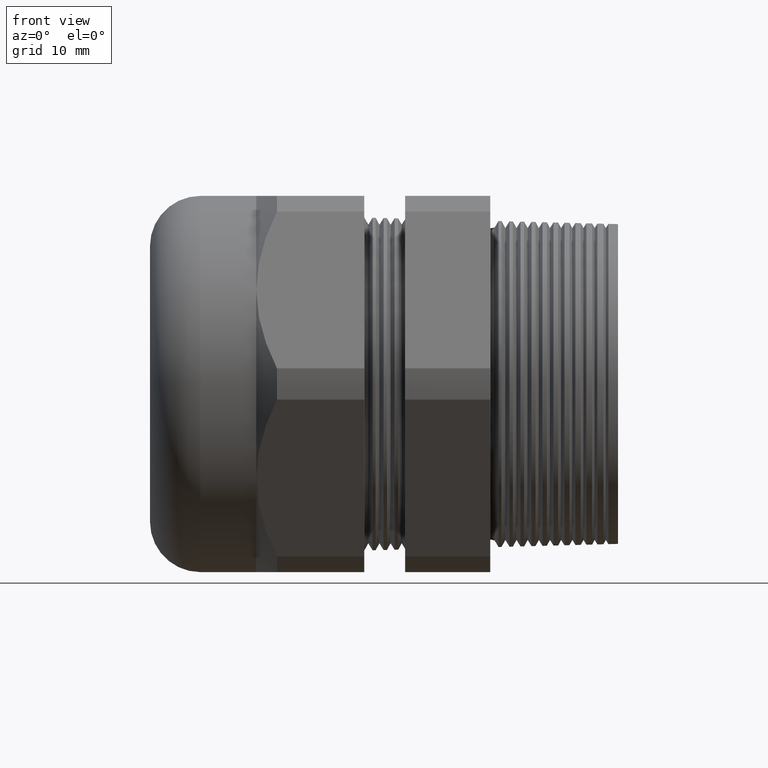
[diagram: clean part render]
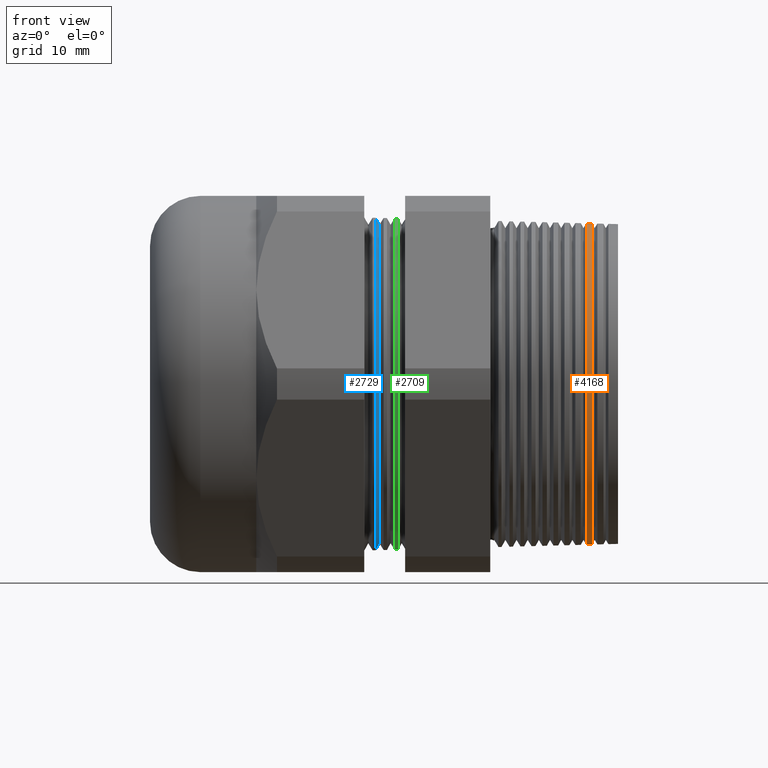
[diagram: same view with three faces highlighted in distinct colors, each labeled with its STEP entity id]
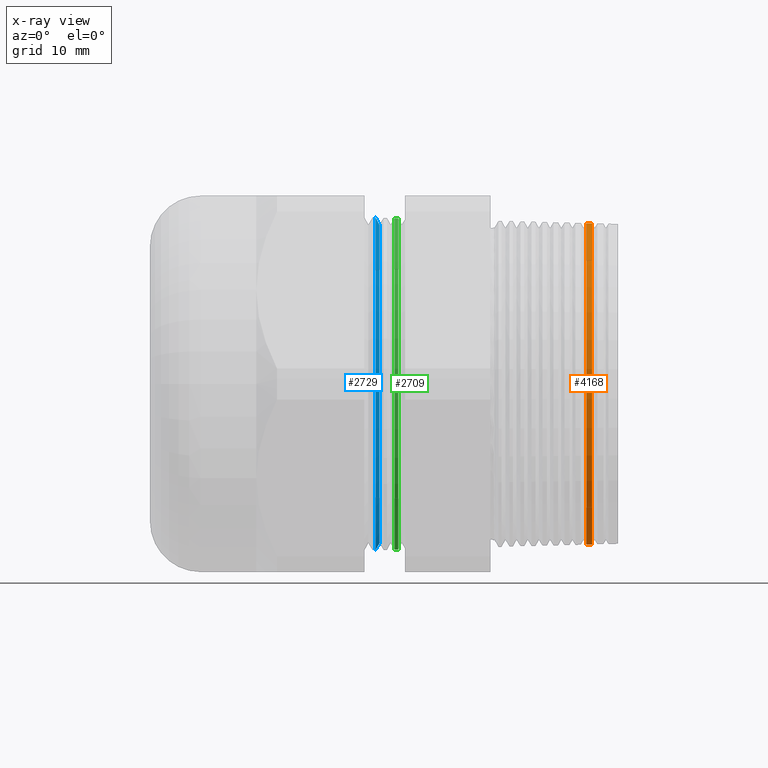
[diagram: x-ray of the same camera — body ghosted, the three highlighted faces saturated]
A machine part, front view with three faces highlighted in distinct colors.
The next image is the same camera in x-ray (body ghosted, the three faces saturated) — at least one of them is partly hidden behind the body in this view.
Their STEP definitions:

[orange] entity #4168 — the highlighted conical surface has half-angle 1.5 deg.
#11 = VERTEX_POINT ( 'NONE', #2896 ) ;
#1183 = DIRECTION ( 'NONE',  ( -0.9996573249755573700, 0.0000000000000000000, 0.02617694830786594700 ) ) ;
#1184 = VECTOR ( 'NONE', #1183, 39.37007874015748100 ) ;
#1185 = CARTESIAN_POINT ( 'NONE',  ( 0.3999999999999999700, 0.0000000000000000000, 0.8880922528443195900 ) ) ;
#1191 = LINE ( 'NONE', #1185, #1184 ) ;
#1217 = DIRECTION ( 'NONE',  ( -0.9996573249755573700, 3.205751595667375400E-018, -0.02617694830786594700 ) ) ;
#1218 = VECTOR ( 'NONE', #1217, 39.37007874015748100 ) ;
#1219 = CARTESIAN_POINT ( 'NONE',  ( 0.3999999999999999700, 1.087599334793357900E-016, -0.8880922528443195900 ) ) ;
#1220 = LINE ( 'NONE', #1219, #1218 ) ;
#1676 = CARTESIAN_POINT ( 'NONE',  ( 0.2560479539771435300, 0.0000000000000000000, 0.8918617698311972500 ) ) ;
#1732 = CARTESIAN_POINT ( 'NONE',  ( 0.2560479539771435300, 1.092724095788043800E-016, -0.8918617698311972500 ) ) ;
#1749 = CARTESIAN_POINT ( 'NONE',  ( 0.2243387064234536300, 1.093232529870418900E-016, -0.8926921057006557100 ) ) ;
#2081 = DIRECTION ( 'NONE',  ( 0.0000000000000000000, 0.0000000000000000000, 1.000000000000000000 ) ) ;
#2082 = DIRECTION ( 'NONE',  ( -1.000000000000000000, 0.0000000000000000000, 0.0000000000000000000 ) ) ;
#2083 = CARTESIAN_POINT ( 'NONE',  ( 0.3999999999999999700, 0.0000000000000000000, 0.0000000000000000000 ) ) ;
#2084 = AXIS2_PLACEMENT_3D ( 'NONE', #2083, #2082, #2081 ) ;
#2086 = CONICAL_SURFACE ( 'NONE', #2084, 0.8880922528443195900, 0.02617993877990773500 ) ;
#2087 = FACE_OUTER_BOUND ( 'NONE', #4167, .T. ) ;
#2088 = DIRECTION ( 'NONE',  ( 0.0000000000000000000, 0.0000000000000000000, 1.000000000000000000 ) ) ;
#2089 = DIRECTION ( 'NONE',  ( 1.000000000000000000, 0.0000000000000000000, 0.0000000000000000000 ) ) ;
#2090 = CARTESIAN_POINT ( 'NONE',  ( 0.2560479539771435300, 0.0000000000000000000, 0.0000000000000000000 ) ) ;
#2091 = AXIS2_PLACEMENT_3D ( 'NONE', #2090, #2089, #2088 ) ;
#2092 = CIRCLE ( 'NONE', #2091, 0.8918617698311972500 ) ;
#2093 = DIRECTION ( 'NONE',  ( 0.0000000000000000000, 0.0000000000000000000, -1.000000000000000000 ) ) ;
#2094 = DIRECTION ( 'NONE',  ( -1.000000000000000000, 0.0000000000000000000, 0.0000000000000000000 ) ) ;
#2095 = AXIS2_PLACEMENT_3D ( 'NONE', #2101, #2094, #2093 ) ;
#2096 = CIRCLE ( 'NONE', #2095, 0.8926921057006556000 ) ;
#2101 = CARTESIAN_POINT ( 'NONE',  ( 0.2243387064234536300, 0.0000000000000000000, 0.0000000000000000000 ) ) ;
#2896 = CARTESIAN_POINT ( 'NONE',  ( 0.2243387064234536300, 0.0000000000000000000, 0.8926921057006557100 ) ) ;
#3718 = EDGE_CURVE ( 'NONE', #3952, #11, #1191, .T. ) ;
#3734 = EDGE_CURVE ( 'NONE', #3955, #3982, #1220, .T. ) ;
#3952 = VERTEX_POINT ( 'NONE', #1676 ) ;
#3955 = VERTEX_POINT ( 'NONE', #1732 ) ;
#3982 = VERTEX_POINT ( 'NONE', #1749 ) ;
#4161 = EDGE_CURVE ( 'NONE', #3982, #11, #2096, .T. ) ;
#4162 = EDGE_CURVE ( 'NONE', #3952, #3955, #2092, .T. ) ;
#4163 = ORIENTED_EDGE ( 'NONE', *, *, #3718, .T. ) ;
#4164 = ORIENTED_EDGE ( 'NONE', *, *, #4161, .F. ) ;
#4165 = ORIENTED_EDGE ( 'NONE', *, *, #3734, .F. ) ;
#4166 = ORIENTED_EDGE ( 'NONE', *, *, #4162, .F. ) ;
#4167 = EDGE_LOOP ( 'NONE', ( #4165, #4166, #4163, #4164 ) ) ;
#4168 = ADVANCED_FACE ( 'NONE', ( #2087 ), #2086, .T. ) ;

[blue] entity #2729 — the highlighted conical surface has half-angle 61.5 deg.
#328 = CARTESIAN_POINT ( 'NONE',  ( -0.9465557828914279400, 0.0000000000000000000, 0.9233530569636403400 ) ) ;
#329 = CARTESIAN_POINT ( 'NONE',  ( -0.9465557828914279400, 1.130781365693445700E-016, -0.9233530569636403400 ) ) ;
#393 = CARTESIAN_POINT ( 'NONE',  ( -0.9254109809054328300, 0.0000000000000000000, -0.8844091762748934600 ) ) ;
#450 = DIRECTION ( 'NONE',  ( -0.4771587602596205100, 0.0000000000000000000, 0.8788171126619588300 ) ) ;
#451 = VECTOR ( 'NONE', #450, 39.37007874015748100 ) ;
#452 = CARTESIAN_POINT ( 'NONE',  ( -0.9474499999999994600, 0.0000000000000000000, 0.9250000000000003800 ) ) ;
#453 = LINE ( 'NONE', #452, #451 ) ;
#454 = DIRECTION ( 'NONE',  ( -0.4771587602596205100, 1.076240564057386800E-016, -0.8788171126619588300 ) ) ;
#455 = VECTOR ( 'NONE', #454, 39.37007874015748100 ) ;
#456 = CARTESIAN_POINT ( 'NONE',  ( -0.9474499999999994600, 1.132798289211302300E-016, -0.9250000000000003800 ) ) ;
#457 = LINE ( 'NONE', #456, #455 ) ;
#458 = CARTESIAN_POINT ( 'NONE',  ( -0.9254109809054328300, 1.106224818276601700E-016, 0.8844091762748934600 ) ) ;
#563 = CARTESIAN_POINT ( 'NONE',  ( -0.9465557828914279400, 0.0000000000000000000, 0.0000000000000000000 ) ) ;
#564 = CONICAL_SURFACE ( 'NONE', #627, 0.9250000000000003800, 1.073377489976499000 ) ;
#569 = FACE_OUTER_BOUND ( 'NONE', #2751, .T. ) ;
#597 = DIRECTION ( 'NONE',  ( 0.0000000000000000000, 0.0000000000000000000, -1.000000000000000000 ) ) ;
#598 = DIRECTION ( 'NONE',  ( 1.000000000000000000, 0.0000000000000000000, 0.0000000000000000000 ) ) ;
#599 = CARTESIAN_POINT ( 'NONE',  ( -0.9254109809054328300, 0.0000000000000000000, 0.0000000000000000000 ) ) ;
#600 = AXIS2_PLACEMENT_3D ( 'NONE', #599, #598, #597 ) ;
#605 = CIRCLE ( 'NONE', #600, 0.8844091762748934600 ) ;
#619 = DIRECTION ( 'NONE',  ( 0.0000000000000000000, 0.0000000000000000000, 1.000000000000000000 ) ) ;
#620 = DIRECTION ( 'NONE',  ( 1.000000000000000000, 0.0000000000000000000, 0.0000000000000000000 ) ) ;
#621 = AXIS2_PLACEMENT_3D ( 'NONE', #563, #620, #619 ) ;
#622 = CIRCLE ( 'NONE', #621, 0.9233530569636403400 ) ;
#624 = DIRECTION ( 'NONE',  ( 0.0000000000000000000, 0.0000000000000000000, 1.000000000000000000 ) ) ;
#625 = DIRECTION ( 'NONE',  ( -1.000000000000000000, 0.0000000000000000000, 0.0000000000000000000 ) ) ;
#626 = CARTESIAN_POINT ( 'NONE',  ( -0.9474499999999994600, 0.0000000000000000000, 0.0000000000000000000 ) ) ;
#627 = AXIS2_PLACEMENT_3D ( 'NONE', #626, #625, #624 ) ;
#2578 = VERTEX_POINT ( 'NONE', #329 ) ;
#2579 = VERTEX_POINT ( 'NONE', #328 ) ;
#2607 = VERTEX_POINT ( 'NONE', #393 ) ;
#2638 = VERTEX_POINT ( 'NONE', #458 ) ;
#2640 = EDGE_CURVE ( 'NONE', #2607, #2578, #457, .T. ) ;
#2643 = EDGE_CURVE ( 'NONE', #2638, #2579, #453, .T. ) ;
#2729 = ADVANCED_FACE ( 'NONE', ( #569 ), #564, .T. ) ;
#2730 = ORIENTED_EDGE ( 'NONE', *, *, #2640, .F. ) ;
#2731 = ORIENTED_EDGE ( 'NONE', *, *, #2748, .F. ) ;
#2732 = ORIENTED_EDGE ( 'NONE', *, *, #2643, .T. ) ;
#2733 = ORIENTED_EDGE ( 'NONE', *, *, #2734, .T. ) ;
#2734 = EDGE_CURVE ( 'NONE', #2579, #2578, #622, .T. ) ;
#2748 = EDGE_CURVE ( 'NONE', #2638, #2607, #605, .T. ) ;
#2751 = EDGE_LOOP ( 'NONE', ( #2730, #2731, #2732, #2733 ) ) ;

[green] entity #2709 — the highlighted conical surface has half-angle 1.5 deg.
#102 = EDGE_LOOP ( 'NONE', ( #2710, #2711, #2713, #2714 ) ) ;
#506 = DIRECTION ( 'NONE',  ( -0.9996573249755573700, 0.0000000000000000000, 0.02617694830786606800 ) ) ;
#507 = VECTOR ( 'NONE', #506, 39.37007874015748100 ) ;
#508 = CARTESIAN_POINT ( 'NONE',  ( -0.7824399999999999100, 0.0000000000000000000, 0.9190555339445806200 ) ) ;
#509 = LINE ( 'NONE', #508, #507 ) ;
#510 = CARTESIAN_POINT ( 'NONE',  ( -0.8412361778538128800, 1.127403923409286300E-016, 0.9205951660464295500 ) ) ;
#516 = CARTESIAN_POINT ( 'NONE',  ( -0.8412361778538128800, 0.0000000000000000000, -0.9205951660464295500 ) ) ;
#517 = DIRECTION ( 'NONE',  ( -0.9996573249755573700, 3.205751595667390400E-018, -0.02617694830786606800 ) ) ;
#518 = VECTOR ( 'NONE', #517, 39.37007874015748100 ) ;
#519 = CARTESIAN_POINT ( 'NONE',  ( -0.7824399999999999100, 1.125518417883892200E-016, -0.9190555339445806200 ) ) ;
#520 = LINE ( 'NONE', #519, #518 ) ;
#531 = DIRECTION ( 'NONE',  ( 1.000000000000000000, 0.0000000000000000000, 0.0000000000000000000 ) ) ;
#532 = CARTESIAN_POINT ( 'NONE',  ( -0.8207673486742848000, 0.0000000000000000000, 0.0000000000000000000 ) ) ;
#533 = AXIS2_PLACEMENT_3D ( 'NONE', #532, #531, #594 ) ;
#534 = DIRECTION ( 'NONE',  ( 0.0000000000000000000, 0.0000000000000000000, 1.000000000000000000 ) ) ;
#535 = DIRECTION ( 'NONE',  ( -1.000000000000000000, 0.0000000000000000000, 0.0000000000000000000 ) ) ;
#536 = CARTESIAN_POINT ( 'NONE',  ( -0.7824399999999999100, 0.0000000000000000000, 0.0000000000000000000 ) ) ;
#537 = AXIS2_PLACEMENT_3D ( 'NONE', #536, #535, #534 ) ;
#538 = CIRCLE ( 'NONE', #533, 0.9200591708909201500 ) ;
#539 = CONICAL_SURFACE ( 'NONE', #537, 0.9190555339445806200, 0.02617993877990785700 ) ;
#540 = FACE_OUTER_BOUND ( 'NONE', #102, .T. ) ;
#541 = DIRECTION ( 'NONE',  ( 0.0000000000000000000, 0.0000000000000000000, -1.000000000000000000 ) ) ;
#542 = DIRECTION ( 'NONE',  ( -1.000000000000000000, 0.0000000000000000000, 0.0000000000000000000 ) ) ;
#543 = AXIS2_PLACEMENT_3D ( 'NONE', #549, #542, #541 ) ;
#544 = CIRCLE ( 'NONE', #543, 0.9205951660464282100 ) ;
#549 = CARTESIAN_POINT ( 'NONE',  ( -0.8412361778538128800, 0.0000000000000000000, 0.0000000000000000000 ) ) ;
#594 = DIRECTION ( 'NONE',  ( 0.0000000000000000000, 0.0000000000000000000, 1.000000000000000000 ) ) ;
#2383 = VERTEX_POINT ( 'NONE', #3270 ) ;
#2385 = VERTEX_POINT ( 'NONE', #3269 ) ;
#2678 = EDGE_CURVE ( 'NONE', #2385, #2679, #520, .T. ) ;
#2679 = VERTEX_POINT ( 'NONE', #516 ) ;
#2682 = VERTEX_POINT ( 'NONE', #510 ) ;
#2684 = EDGE_CURVE ( 'NONE', #2383, #2682, #509, .T. ) ;
#2708 = EDGE_CURVE ( 'NONE', #2679, #2682, #544, .T. ) ;
#2709 = ADVANCED_FACE ( 'NONE', ( #540 ), #539, .T. ) ;
#2710 = ORIENTED_EDGE ( 'NONE', *, *, #2678, .F. ) ;
#2711 = ORIENTED_EDGE ( 'NONE', *, *, #2712, .F. ) ;
#2712 = EDGE_CURVE ( 'NONE', #2383, #2385, #538, .T. ) ;
#2713 = ORIENTED_EDGE ( 'NONE', *, *, #2684, .T. ) ;
#2714 = ORIENTED_EDGE ( 'NONE', *, *, #2708, .F. ) ;
#3269 = CARTESIAN_POINT ( 'NONE',  ( -0.8207673486742848000, 1.127075721033508600E-016, -0.9200591708909201500 ) ) ;
#3270 = CARTESIAN_POINT ( 'NONE',  ( -0.8207673486742848000, 0.0000000000000000000, 0.9200591708909201500 ) ) ;